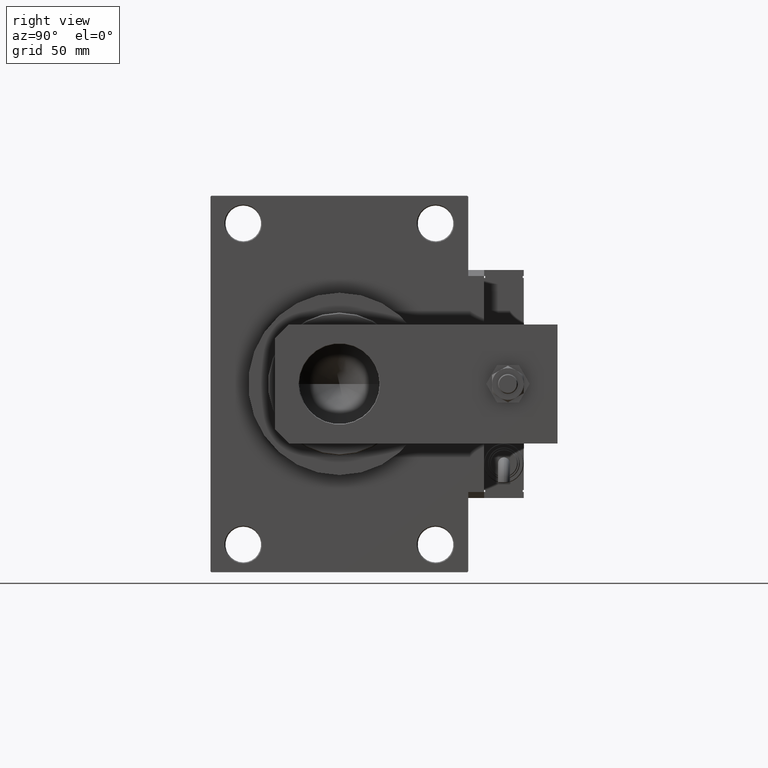
[diagram: clean part render]
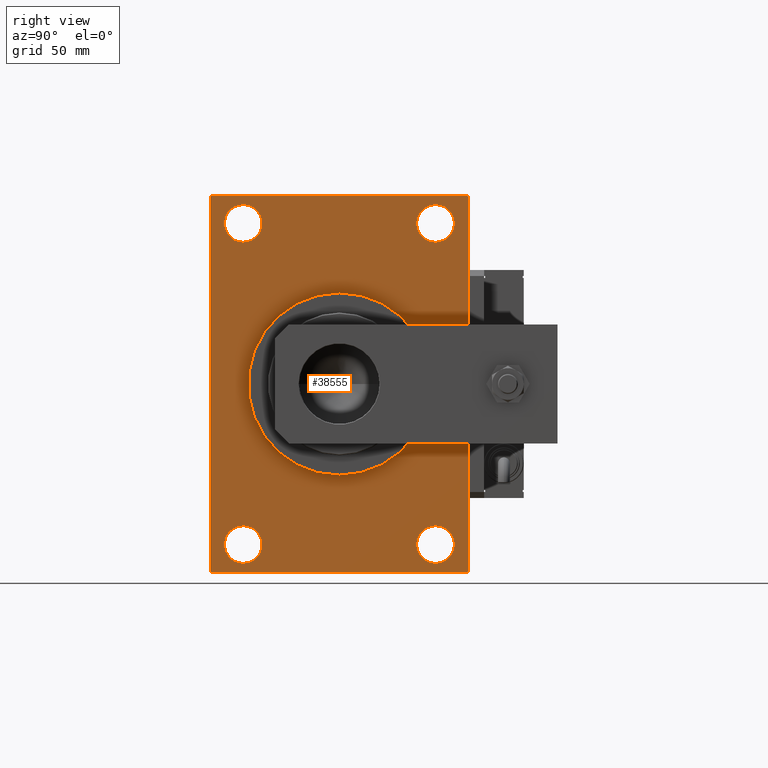
[diagram: same view with one face highlighted and labeled with its STEP entity id]
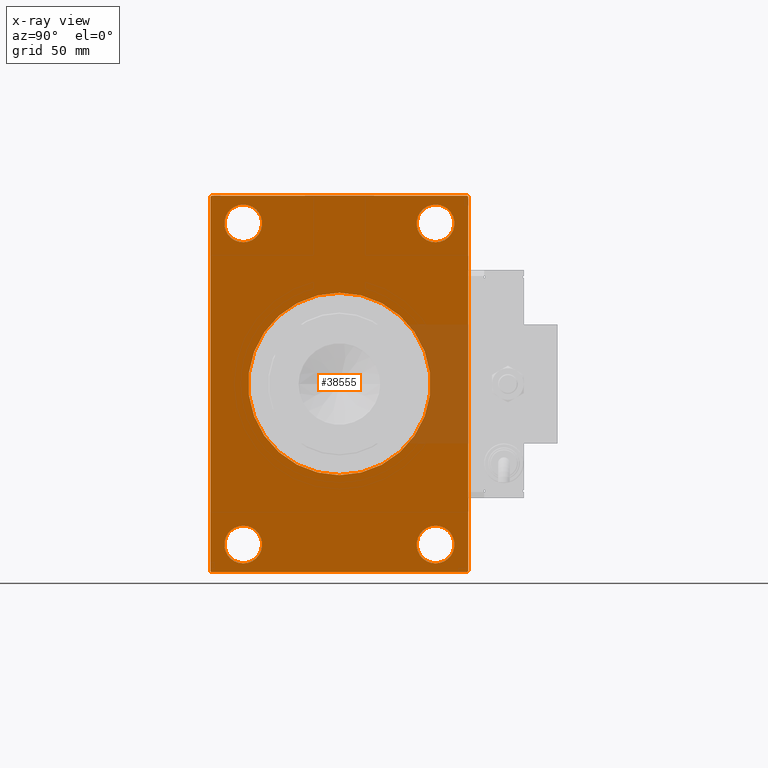
[diagram: x-ray of the same camera — body ghosted, the highlighted face saturated]
A machine part, right view. The second image highlights one B-rep face of the part: STEP entity #38555.
The next image is the same camera in x-ray: the body ghosted, the highlighted face saturated — about 8% of this face is hidden behind the body in this view.
In plain terms, the highlighted planar face has unit normal (-1, 0, 0).
Its self-contained STEP definition (entity closure, byte-faithful):
#235 = CARTESIAN_POINT ( 'NONE',  ( 156.0000000000000000, 48.50000000000000000, -81.00000000000000000 ) ) ;
#290 = DIRECTION ( 'NONE',  ( 0.000000000000000000, 0.000000000000000000, 1.000000000000000000 ) ) ;
#474 = CARTESIAN_POINT ( 'NONE',  ( 156.0000000000000000, 48.50000000000000000, 90.49999999999992895 ) ) ;
#609 = EDGE_CURVE ( 'NONE', #50697, #29512, #30150, .T. ) ;
#917 = CARTESIAN_POINT ( 'NONE',  ( 156.0000000000000000, -48.50000000000000000, -71.50000000000007105 ) ) ;
#938 = DIRECTION ( 'NONE',  ( -1.000000000000000000, -0.000000000000000000, -0.000000000000000000 ) ) ;
#1068 = ORIENTED_EDGE ( 'NONE', *, *, #14184, .T. ) ;
#1228 = VERTEX_POINT ( 'NONE', #40906 ) ;
#1600 = DIRECTION ( 'NONE',  ( -0.000000000000000000, 0.000000000000000000, 1.000000000000000000 ) ) ;
#1801 = CIRCLE ( 'NONE', #19066, 9.499999999999925393 ) ;
#3343 = EDGE_CURVE ( 'NONE', #36576, #6898, #22955, .T. ) ;
#3614 = VERTEX_POINT ( 'NONE', #27039 ) ;
#3666 = VECTOR ( 'NONE', #41580, 1000.000000000000114 ) ;
#3862 = ORIENTED_EDGE ( 'NONE', *, *, #4094, .T. ) ;
#4068 = CARTESIAN_POINT ( 'NONE',  ( 156.0000000000000000, 65.00000000000000000, 95.00000000000000000 ) ) ;
#4094 = EDGE_CURVE ( 'NONE', #50697, #26342, #33631, .T. ) ;
#4265 = LINE ( 'NONE', #16401, #31079 ) ;
#4323 = ORIENTED_EDGE ( 'NONE', *, *, #29404, .T. ) ;
#4735 = CARTESIAN_POINT ( 'NONE',  ( 156.0000000000000000, -65.00000000000000000, 94.50000000000001421 ) ) ;
#5078 = CARTESIAN_POINT ( 'NONE',  ( 156.0000000000000000, 48.50000000000000000, -71.50000000000007105 ) ) ;
#5103 = PLANE ( 'NONE',  #9995 ) ;
#5377 = FACE_BOUND ( 'NONE', #46747, .T. ) ;
#5415 = ORIENTED_EDGE ( 'NONE', *, *, #16981, .T. ) ;
#6774 = CARTESIAN_POINT ( 'NONE',  ( 156.0000000000000000, 65.00000000000000000, -94.49999999999997158 ) ) ;
#6877 = DIRECTION ( 'NONE',  ( 0.000000000000000000, 0.000000000000000000, -1.000000000000000000 ) ) ;
#6898 = VERTEX_POINT ( 'NONE', #20532 ) ;
#7158 = DIRECTION ( 'NONE',  ( -1.000000000000000000, -0.000000000000000000, -0.000000000000000000 ) ) ;
#7196 = EDGE_CURVE ( 'NONE', #50183, #36811, #10137, .T. ) ;
#8065 = ORIENTED_EDGE ( 'NONE', *, *, #8417, .T. ) ;
#8417 = EDGE_CURVE ( 'NONE', #12735, #51102, #18843, .T. ) ;
#9007 = DIRECTION ( 'NONE',  ( 1.000000000000000000, 0.000000000000000000, 0.000000000000000000 ) ) ;
#9032 = DIRECTION ( 'NONE',  ( 0.000000000000000000, -0.7071067811865474617, 0.7071067811865474617 ) ) ;
#9105 = CARTESIAN_POINT ( 'NONE',  ( 156.0000000000000000, 64.49999999999994316, 95.00000000000000000 ) ) ;
#9319 = EDGE_LOOP ( 'NONE', ( #26849, #4323 ) ) ;
#9387 = ORIENTED_EDGE ( 'NONE', *, *, #29651, .T. ) ;
#9857 = CARTESIAN_POINT ( 'NONE',  ( 156.0000000000000000, -48.50000000000000000, -81.00000000000000000 ) ) ;
#9961 = AXIS2_PLACEMENT_3D ( 'NONE', #37402, #9007, #41727 ) ;
#9995 = AXIS2_PLACEMENT_3D ( 'NONE', #42133, #18347, #1600 ) ;
#10046 = EDGE_CURVE ( 'NONE', #48945, #3614, #47254, .T. ) ;
#10137 = CIRCLE ( 'NONE', #40341, 9.499999999999925393 ) ;
#11255 = CARTESIAN_POINT ( 'NONE',  ( 156.0000000000000000, 48.50000000000000000, 71.50000000000007105 ) ) ;
#11727 = CARTESIAN_POINT ( 'NONE',  ( 156.0000000000000000, -48.50000000000000000, -81.00000000000000000 ) ) ;
#12419 = VERTEX_POINT ( 'NONE', #38136 ) ;
#12523 = CARTESIAN_POINT ( 'NONE',  ( 156.0000000000000000, 65.00000000000000000, 94.49999999999994316 ) ) ;
#12715 = DIRECTION ( 'NONE',  ( -1.000000000000000000, -0.000000000000000000, -0.000000000000000000 ) ) ;
#12735 = VERTEX_POINT ( 'NONE', #4735 ) ;
#13091 = ORIENTED_EDGE ( 'NONE', *, *, #24010, .T. ) ;
#13470 = FACE_BOUND ( 'NONE', #31249, .T. ) ;
#13610 = EDGE_CURVE ( 'NONE', #6898, #36576, #23212, .T. ) ;
#13802 = DIRECTION ( 'NONE',  ( -1.000000000000000000, -0.000000000000000000, -0.000000000000000000 ) ) ;
#14184 = EDGE_CURVE ( 'NONE', #36811, #50183, #28394, .T. ) ;
#14637 = AXIS2_PLACEMENT_3D ( 'NONE', #37333, #12715, #290 ) ;
#15500 = DIRECTION ( 'NONE',  ( 1.000000000000000000, 0.000000000000000000, 0.000000000000000000 ) ) ;
#15654 = EDGE_CURVE ( 'NONE', #43380, #50141, #19881, .T. ) ;
#16401 = CARTESIAN_POINT ( 'NONE',  ( 156.0000000000000000, 65.00000000000000000, -95.00000000000002842 ) ) ;
#16472 = VERTEX_POINT ( 'NONE', #37499 ) ;
#16520 = CARTESIAN_POINT ( 'NONE',  ( 156.0000000000000000, -64.49999999999994316, -95.00000000000002842 ) ) ;
#16981 = EDGE_CURVE ( 'NONE', #26342, #16472, #32190, .T. ) ;
#17771 = VECTOR ( 'NONE', #9032, 1000.000000000000114 ) ;
#17800 = FACE_BOUND ( 'NONE', #50138, .T. ) ;
#18347 = DIRECTION ( 'NONE',  ( -1.000000000000000000, 0.000000000000000000, -0.000000000000000000 ) ) ;
#18479 = DIRECTION ( 'NONE',  ( 0.000000000000000000, 0.000000000000000000, 1.000000000000000000 ) ) ;
#18690 = DIRECTION ( 'NONE',  ( 0.000000000000000000, 0.7071067811865376918, -0.7071067811865573427 ) ) ;
#18843 = LINE ( 'NONE', #34549, #40417 ) ;
#18901 = CARTESIAN_POINT ( 'NONE',  ( 156.0000000000000000, 5.633375276077824704E-15, -46.00000000000000000 ) ) ;
#18944 = CARTESIAN_POINT ( 'NONE',  ( 156.0000000000000000, 48.50000000000000000, -90.49999999999992895 ) ) ;
#19066 = AXIS2_PLACEMENT_3D ( 'NONE', #9857, #938, #22568 ) ;
#19143 = VECTOR ( 'NONE', #18690, 1000.000000000000114 ) ;
#19162 = CARTESIAN_POINT ( 'NONE',  ( 156.0000000000000000, 48.50000000000000000, 81.00000000000000000 ) ) ;
#19413 = VERTEX_POINT ( 'NONE', #917 ) ;
#19881 = CIRCLE ( 'NONE', #50092, 9.499999999999925393 ) ;
#20394 = CIRCLE ( 'NONE', #9961, 46.00000000000000000 ) ;
#20532 = CARTESIAN_POINT ( 'NONE',  ( 156.0000000000000000, -48.50000000000000000, 90.49999999999992895 ) ) ;
#21050 = DIRECTION ( 'NONE',  ( -1.000000000000000000, -0.000000000000000000, -0.000000000000000000 ) ) ;
#21561 = EDGE_CURVE ( 'NONE', #19413, #1228, #1801, .T. ) ;
#22136 = CARTESIAN_POINT ( 'NONE',  ( 156.0000000000000000, -65.00000000000000000, 94.50000000000001421 ) ) ;
#22568 = DIRECTION ( 'NONE',  ( 0.000000000000000000, 0.000000000000000000, 1.000000000000000000 ) ) ;
#22627 = ORIENTED_EDGE ( 'NONE', *, *, #21561, .T. ) ;
#22955 = CIRCLE ( 'NONE', #35911, 9.499999999999925393 ) ;
#23212 = CIRCLE ( 'NONE', #50853, 9.499999999999925393 ) ;
#23486 = DIRECTION ( 'NONE',  ( -1.000000000000000000, -0.000000000000000000, -0.000000000000000000 ) ) ;
#23545 = AXIS2_PLACEMENT_3D ( 'NONE', #50852, #13802, #30284 ) ;
#24010 = EDGE_CURVE ( 'NONE', #51102, #52697, #51413, .T. ) ;
#24393 = CIRCLE ( 'NONE', #23545, 9.499999999999925393 ) ;
#25637 = FACE_BOUND ( 'NONE', #9319, .T. ) ;
#26342 = VERTEX_POINT ( 'NONE', #9105 ) ;
#26752 = ORIENTED_EDGE ( 'NONE', *, *, #28667, .T. ) ;
#26849 = ORIENTED_EDGE ( 'NONE', *, *, #15654, .T. ) ;
#27039 = CARTESIAN_POINT ( 'NONE',  ( 156.0000000000000000, 0.000000000000000000, 46.00000000000000000 ) ) ;
#28041 = EDGE_LOOP ( 'NONE', ( #8065, #13091, #34998, #26752, #47829, #3862, #5415, #9387 ) ) ;
#28394 = CIRCLE ( 'NONE', #14637, 9.499999999999925393 ) ;
#28667 = EDGE_CURVE ( 'NONE', #12419, #29512, #32405, .T. ) ;
#28726 = DIRECTION ( 'NONE',  ( 0.000000000000000000, 0.000000000000000000, 1.000000000000000000 ) ) ;
#29294 = CARTESIAN_POINT ( 'NONE',  ( 156.0000000000000000, 64.49999999999994316, 95.00000000000000000 ) ) ;
#29404 = EDGE_CURVE ( 'NONE', #50141, #43380, #24393, .T. ) ;
#29512 = VERTEX_POINT ( 'NONE', #6774 ) ;
#29651 = EDGE_CURVE ( 'NONE', #16472, #12735, #38349, .T. ) ;
#30150 = LINE ( 'NONE', #38275, #38389 ) ;
#30171 = ORIENTED_EDGE ( 'NONE', *, *, #39887, .T. ) ;
#30284 = DIRECTION ( 'NONE',  ( 0.000000000000000000, 0.000000000000000000, 1.000000000000000000 ) ) ;
#30503 = FACE_BOUND ( 'NONE', #44150, .T. ) ;
#31079 = VECTOR ( 'NONE', #45877, 1000.000000000000000 ) ;
#31249 = EDGE_LOOP ( 'NONE', ( #30171, #22627 ) ) ;
#31995 = CARTESIAN_POINT ( 'NONE',  ( 156.0000000000000000, 0.000000000000000000, 0.000000000000000000 ) ) ;
#31997 = VECTOR ( 'NONE', #48684, 1000.000000000000000 ) ;
#32190 = LINE ( 'NONE', #4068, #31997 ) ;
#32405 = LINE ( 'NONE', #48893, #3666 ) ;
#33279 = ORIENTED_EDGE ( 'NONE', *, *, #7196, .T. ) ;
#33631 = LINE ( 'NONE', #29294, #17771 ) ;
#34497 = DIRECTION ( 'NONE',  ( -1.000000000000000000, -0.000000000000000000, -0.000000000000000000 ) ) ;
#34549 = CARTESIAN_POINT ( 'NONE',  ( 156.0000000000000000, -65.00000000000000000, 94.99999999999998579 ) ) ;
#34707 = CARTESIAN_POINT ( 'NONE',  ( 156.0000000000000000, -48.50000000000000000, 81.00000000000000000 ) ) ;
#34998 = ORIENTED_EDGE ( 'NONE', *, *, #49089, .F. ) ;
#35911 = AXIS2_PLACEMENT_3D ( 'NONE', #34707, #42812, #18479 ) ;
#36423 = ORIENTED_EDGE ( 'NONE', *, *, #10046, .F. ) ;
#36503 = VECTOR ( 'NONE', #42131, 1000.000000000000114 ) ;
#36576 = VERTEX_POINT ( 'NONE', #45358 ) ;
#36758 = CIRCLE ( 'NONE', #38511, 9.499999999999925393 ) ;
#36811 = VERTEX_POINT ( 'NONE', #11255 ) ;
#37333 = CARTESIAN_POINT ( 'NONE',  ( 156.0000000000000000, 48.50000000000000000, 81.00000000000000000 ) ) ;
#37402 = CARTESIAN_POINT ( 'NONE',  ( 156.0000000000000000, 0.000000000000000000, 0.000000000000000000 ) ) ;
#37463 = DIRECTION ( 'NONE',  ( 0.000000000000000000, 0.000000000000000000, -1.000000000000000000 ) ) ;
#37499 = CARTESIAN_POINT ( 'NONE',  ( 156.0000000000000000, -64.50000000000002842, 94.99999999999998579 ) ) ;
#38136 = CARTESIAN_POINT ( 'NONE',  ( 156.0000000000000000, 64.49999999999994316, -95.00000000000002842 ) ) ;
#38275 = CARTESIAN_POINT ( 'NONE',  ( 156.0000000000000000, 65.00000000000000000, 95.00000000000000000 ) ) ;
#38276 = CARTESIAN_POINT ( 'NONE',  ( 156.0000000000000000, -48.50000000000000000, 81.00000000000000000 ) ) ;
#38295 = EDGE_CURVE ( 'NONE', #3614, #48945, #20394, .T. ) ;
#38349 = LINE ( 'NONE', #22136, #36503 ) ;
#38389 = VECTOR ( 'NONE', #37463, 1000.000000000000000 ) ;
#38511 = AXIS2_PLACEMENT_3D ( 'NONE', #11727, #7158, #28726 ) ;
#38555 = ADVANCED_FACE ( 'NONE', ( #17800, #13470, #25637, #30503, #5377, #43215 ), #5103, .F. ) ;
#38700 = CARTESIAN_POINT ( 'NONE',  ( 156.0000000000000000, -64.49999999999994316, -95.00000000000002842 ) ) ;
#38863 = DIRECTION ( 'NONE',  ( 0.000000000000000000, 0.000000000000000000, -1.000000000000000000 ) ) ;
#38958 = CARTESIAN_POINT ( 'NONE',  ( 156.0000000000000000, -65.00000000000000000, -94.49999999999995737 ) ) ;
#39887 = EDGE_CURVE ( 'NONE', #1228, #19413, #36758, .T. ) ;
#40341 = AXIS2_PLACEMENT_3D ( 'NONE', #19162, #23486, #49130 ) ;
#40417 = VECTOR ( 'NONE', #38863, 1000.000000000000000 ) ;
#40906 = CARTESIAN_POINT ( 'NONE',  ( 156.0000000000000000, -48.50000000000000000, -90.49999999999992895 ) ) ;
#41580 = DIRECTION ( 'NONE',  ( -0.000000000000000000, 0.7071067811865474617, 0.7071067811865474617 ) ) ;
#41727 = DIRECTION ( 'NONE',  ( 0.000000000000000000, 0.000000000000000000, -1.000000000000000000 ) ) ;
#42131 = DIRECTION ( 'NONE',  ( -0.000000000000000000, -0.7071067811865474617, -0.7071067811865474617 ) ) ;
#42133 = CARTESIAN_POINT ( 'NONE',  ( 156.0000000000000000, 0.000000000000000000, 0.000000000000000000 ) ) ;
#42812 = DIRECTION ( 'NONE',  ( -1.000000000000000000, -0.000000000000000000, -0.000000000000000000 ) ) ;
#43215 = FACE_OUTER_BOUND ( 'NONE', #28041, .T. ) ;
#43380 = VERTEX_POINT ( 'NONE', #18944 ) ;
#43426 = ORIENTED_EDGE ( 'NONE', *, *, #3343, .T. ) ;
#44150 = EDGE_LOOP ( 'NONE', ( #1068, #33279 ) ) ;
#45358 = CARTESIAN_POINT ( 'NONE',  ( 156.0000000000000000, -48.50000000000000000, 71.50000000000007105 ) ) ;
#45644 = DIRECTION ( 'NONE',  ( 0.000000000000000000, 0.000000000000000000, 1.000000000000000000 ) ) ;
#45877 = DIRECTION ( 'NONE',  ( 0.000000000000000000, -1.000000000000000000, 0.000000000000000000 ) ) ;
#46747 = EDGE_LOOP ( 'NONE', ( #49216, #36423 ) ) ;
#47254 = CIRCLE ( 'NONE', #50732, 46.00000000000000000 ) ;
#47829 = ORIENTED_EDGE ( 'NONE', *, *, #609, .F. ) ;
#48157 = ORIENTED_EDGE ( 'NONE', *, *, #13610, .T. ) ;
#48684 = DIRECTION ( 'NONE',  ( 0.000000000000000000, -1.000000000000000000, -1.067522139062650425E-16 ) ) ;
#48893 = CARTESIAN_POINT ( 'NONE',  ( 156.0000000000000000, 65.00000000000000000, -94.49999999999997158 ) ) ;
#48945 = VERTEX_POINT ( 'NONE', #18901 ) ;
#49089 = EDGE_CURVE ( 'NONE', #12419, #52697, #4265, .T. ) ;
#49130 = DIRECTION ( 'NONE',  ( 0.000000000000000000, 0.000000000000000000, 1.000000000000000000 ) ) ;
#49216 = ORIENTED_EDGE ( 'NONE', *, *, #38295, .F. ) ;
#50092 = AXIS2_PLACEMENT_3D ( 'NONE', #235, #21050, #45644 ) ;
#50138 = EDGE_LOOP ( 'NONE', ( #43426, #48157 ) ) ;
#50141 = VERTEX_POINT ( 'NONE', #5078 ) ;
#50183 = VERTEX_POINT ( 'NONE', #474 ) ;
#50442 = DIRECTION ( 'NONE',  ( 0.000000000000000000, 0.000000000000000000, 1.000000000000000000 ) ) ;
#50697 = VERTEX_POINT ( 'NONE', #12523 ) ;
#50732 = AXIS2_PLACEMENT_3D ( 'NONE', #31995, #15500, #6877 ) ;
#50852 = CARTESIAN_POINT ( 'NONE',  ( 156.0000000000000000, 48.50000000000000000, -81.00000000000000000 ) ) ;
#50853 = AXIS2_PLACEMENT_3D ( 'NONE', #38276, #34497, #50442 ) ;
#51102 = VERTEX_POINT ( 'NONE', #38958 ) ;
#51413 = LINE ( 'NONE', #38700, #19143 ) ;
#52697 = VERTEX_POINT ( 'NONE', #16520 ) ;